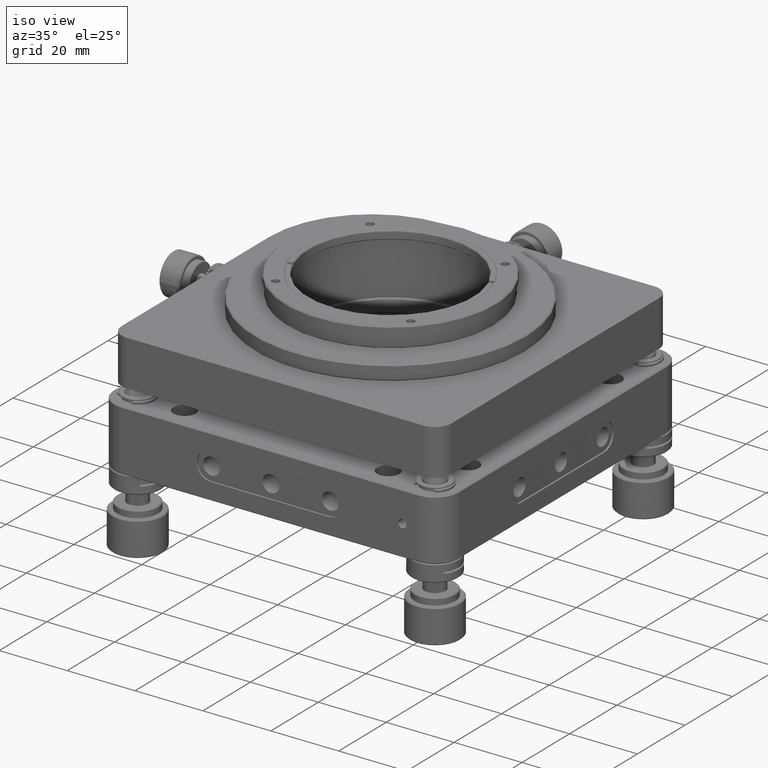
[diagram: clean part render]
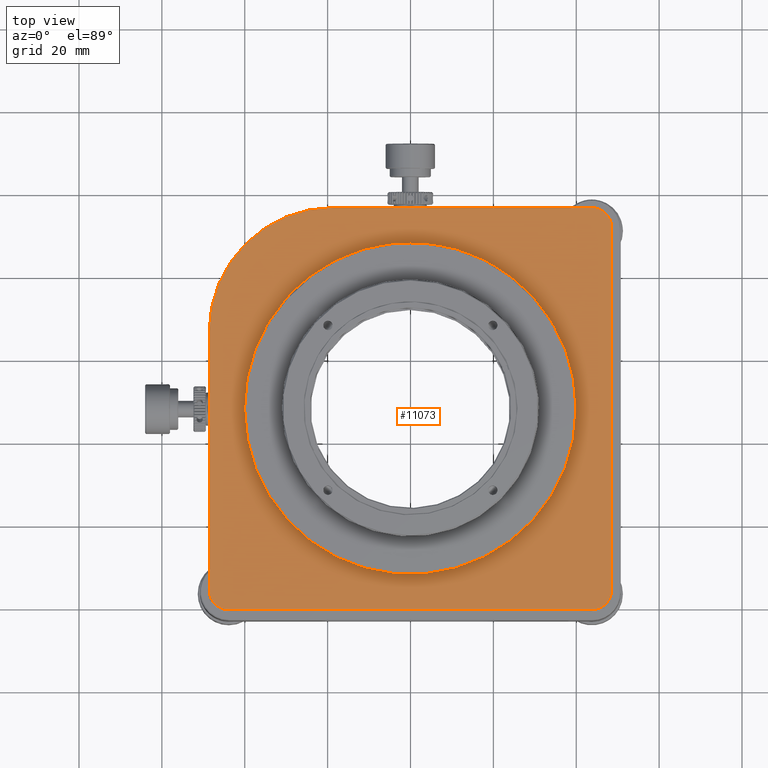
[diagram: tour spotlight — one face highlighted and labeled with its STEP entity id]
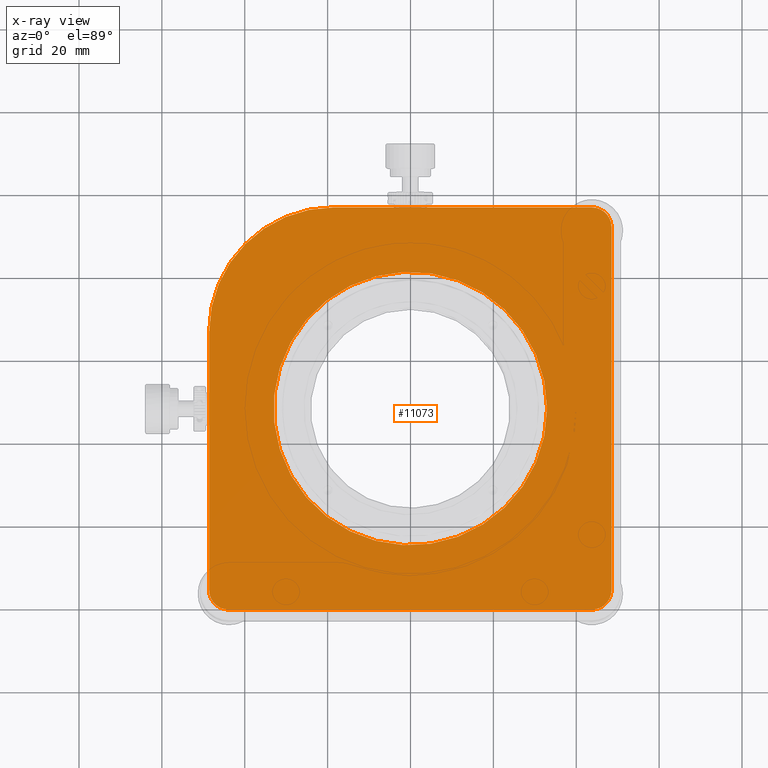
[diagram: x-ray of the same camera — body ghosted, this tour face saturated]
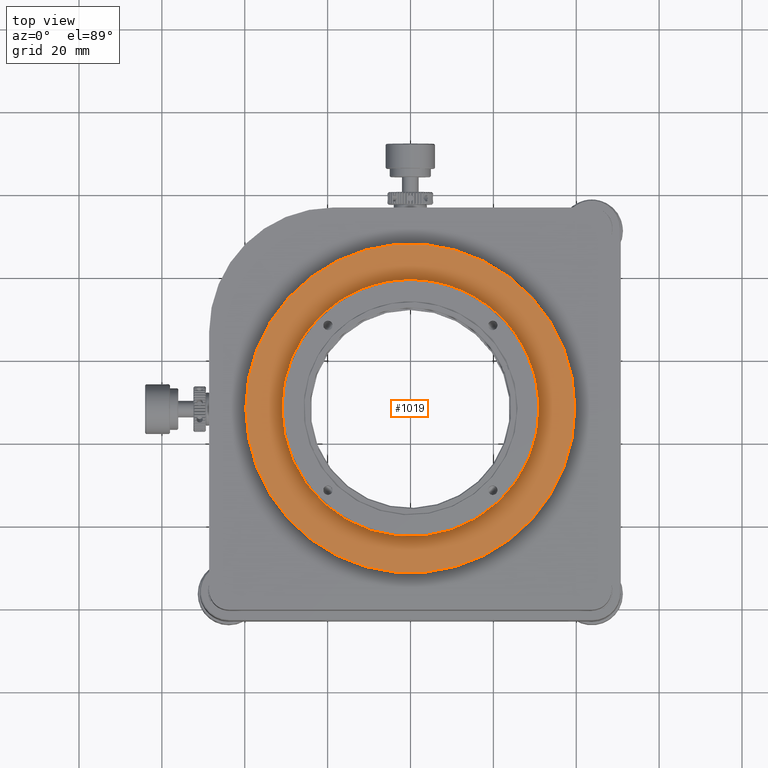
[diagram: tour spotlight — one face highlighted and labeled with its STEP entity id]
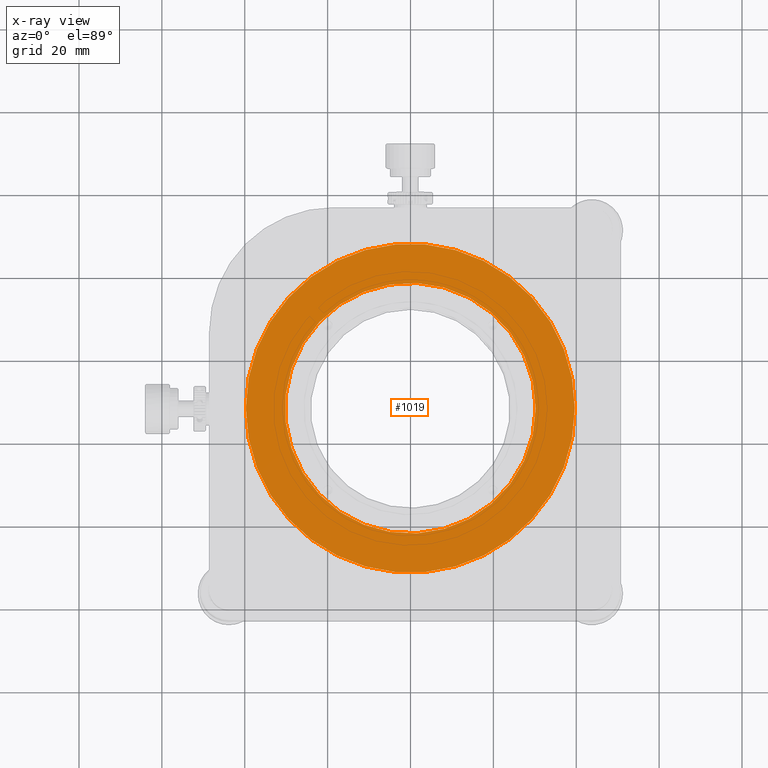
[diagram: x-ray of the same camera — body ghosted, this tour face saturated]
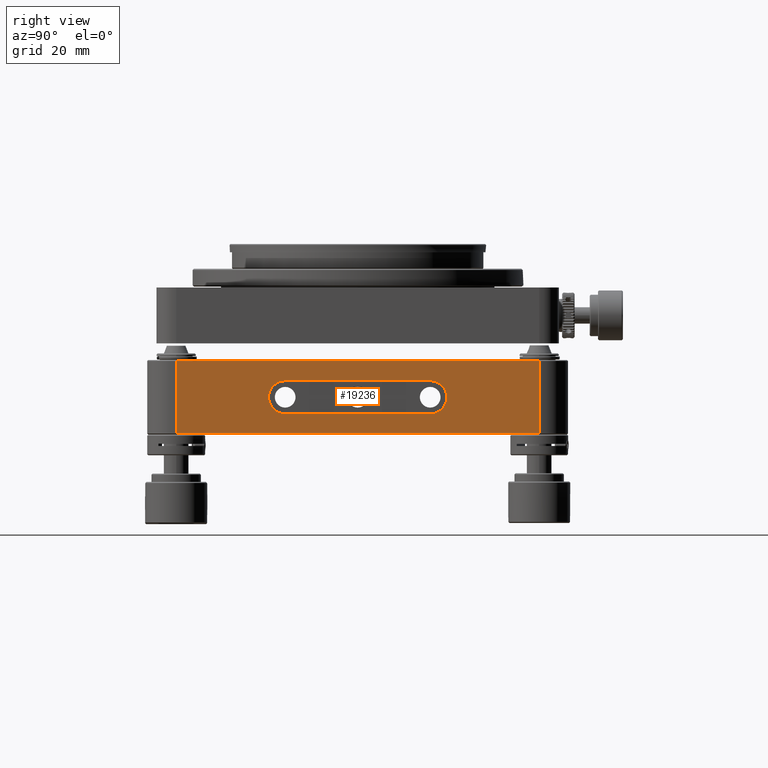
[diagram: tour spotlight — one face highlighted and labeled with its STEP entity id]
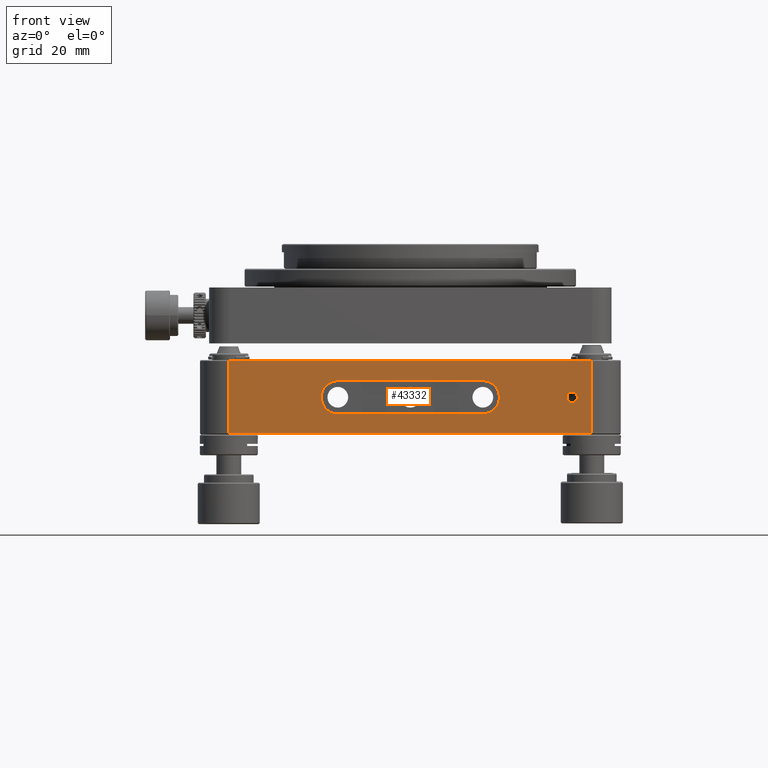
[diagram: tour spotlight — one face highlighted and labeled with its STEP entity id]
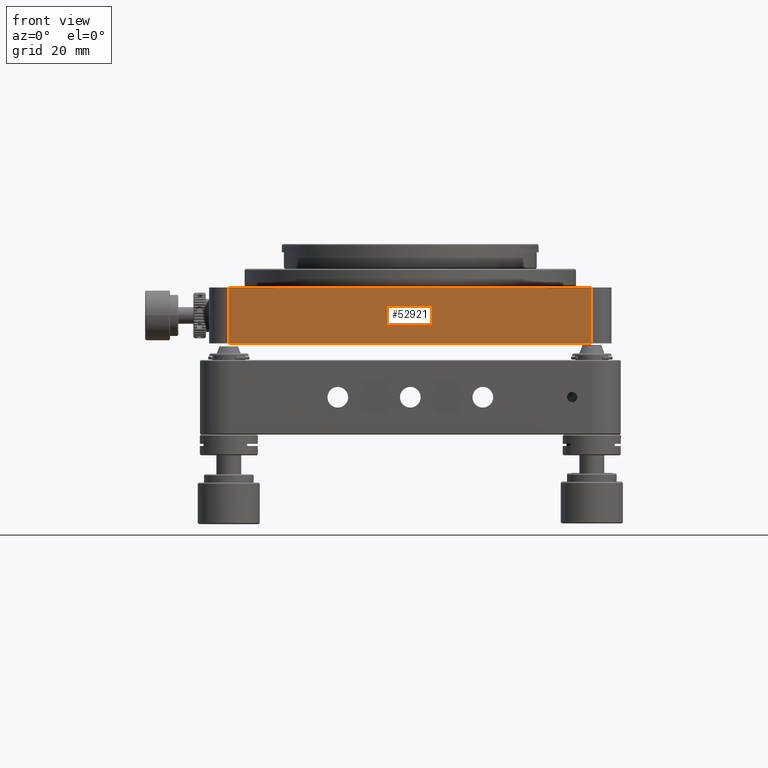
[diagram: tour spotlight — one face highlighted and labeled with its STEP entity id]
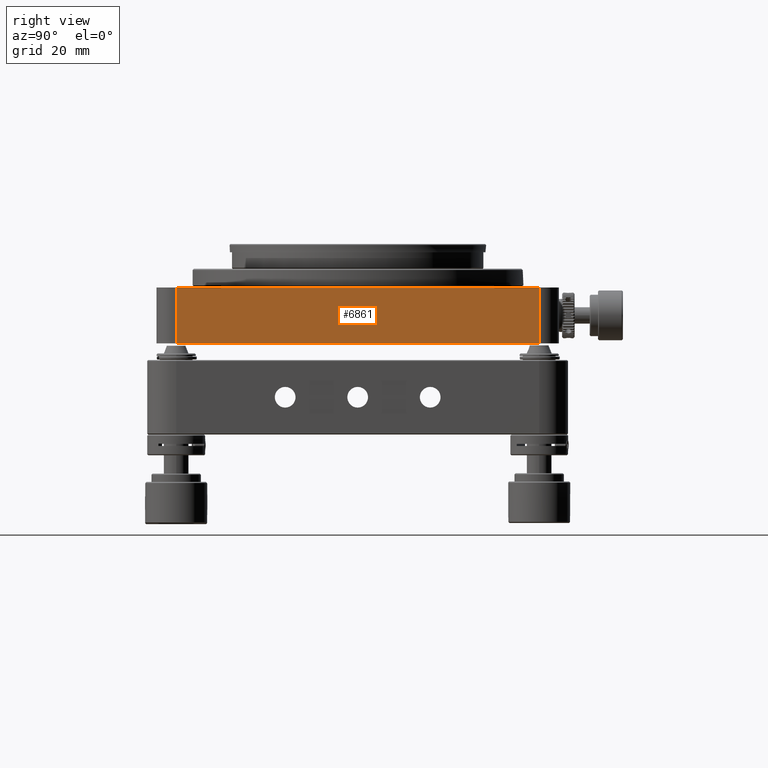
[diagram: tour spotlight — one face highlighted and labeled with its STEP entity id]
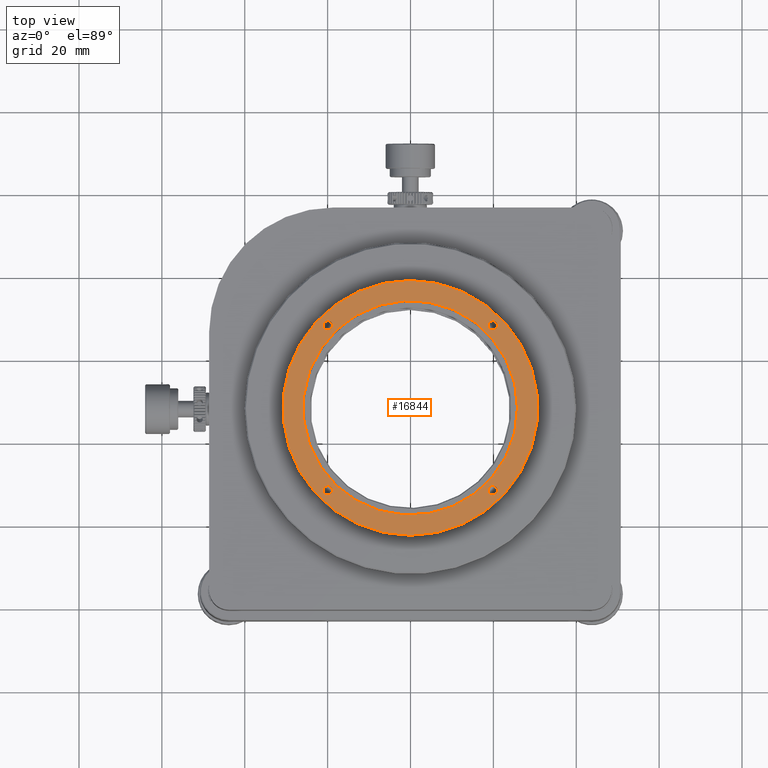
[diagram: tour spotlight — one face highlighted and labeled with its STEP entity id]
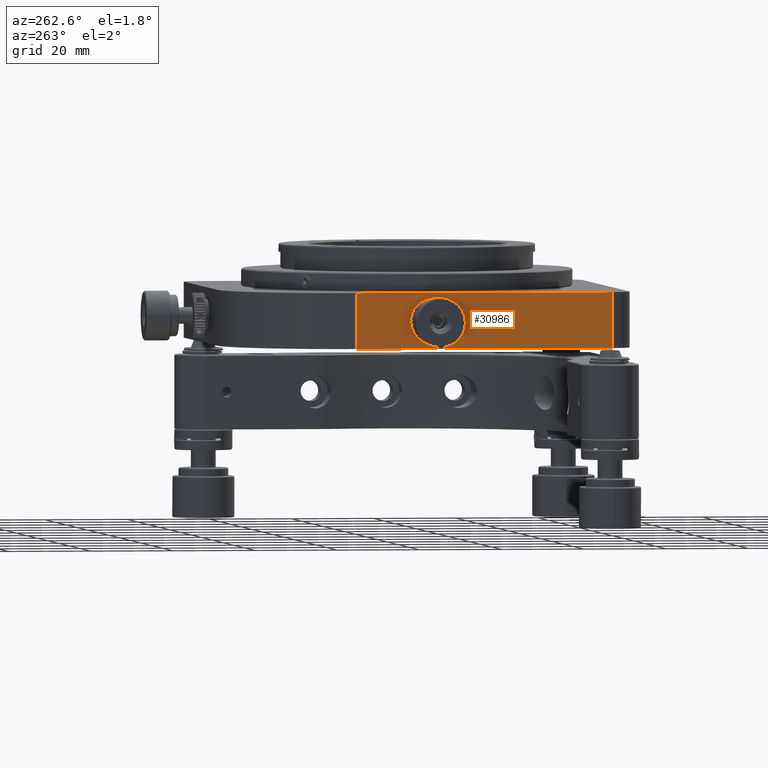
[diagram: tour spotlight — one face highlighted and labeled with its STEP entity id]
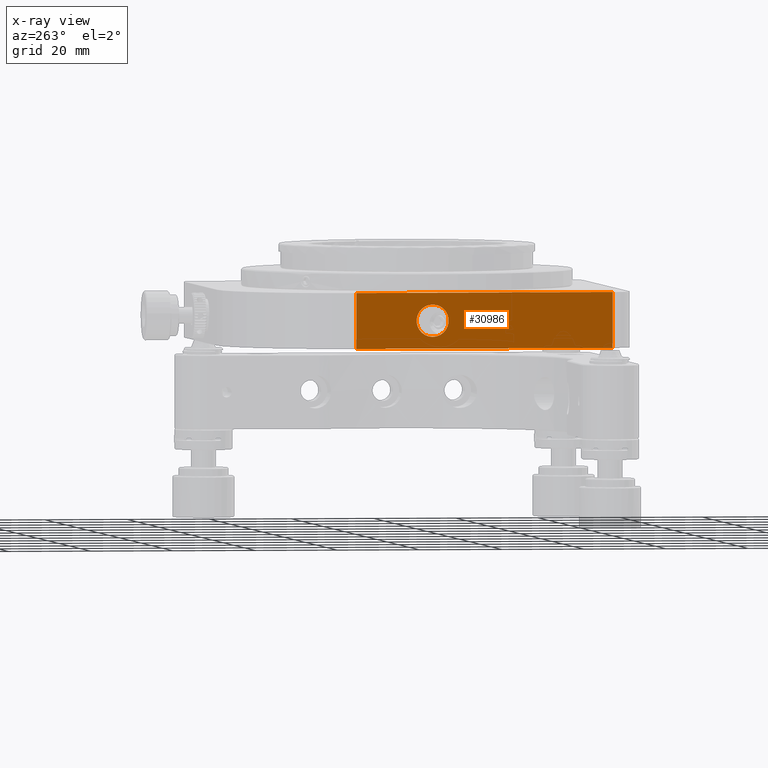
[diagram: x-ray of the same camera — body ghosted, this tour face saturated]
A machine part: a face-by-face anatomy tour. The part has 1506 B-rep faces; the first image is the clean iso view, then the 8 largest visible faces are spotlighted one at a time (largest first), each with its STEP entity span.

Face 1 — top view, entity #11073. An x-ray twin of the same camera follows (body ghosted, this face saturated) — the face is partly hidden behind the body. In plain terms, the highlighted planar face has unit normal (0, 0, 1).
Definition (entity closure, byte-faithful):
#526 = DIRECTION ( 'NONE',  ( -1.663366159635580232E-16, -3.603987660846512529E-17, -1.000000000000000000 ) ) ;
#1220 = CIRCLE ( 'NONE', #43931, 4.749999999999997335 ) ;
#2240 = CARTESIAN_POINT ( 'NONE',  ( -148.6000000000000796, -61.00000000000006395, 40.03842537941658719 ) ) ;
#2389 = ORIENTED_EDGE ( 'NONE', *, *, #37579, .T. ) ;
#3087 = ORIENTED_EDGE ( 'NONE', *, *, #50611, .F. ) ;
#3151 = AXIS2_PLACEMENT_3D ( 'NONE', #12533, #13351, #8893 ) ;
#3387 = DIRECTION ( 'NONE',  ( 1.000000000000000000, 1.706285386206695980E-16, -0.000000000000000000 ) ) ;
#3928 = LINE ( 'NONE', #15926, #9028 ) ;
#3984 = EDGE_LOOP ( 'NONE', ( #9444, #3087, #27390, #33935, #47982, #18307, #44100, #18369 ) ) ;
#4243 = CARTESIAN_POINT ( 'NONE',  ( -56.25000000000004974, -61.00000000000004263, 40.03842537941658009 ) ) ;
#5309 = CARTESIAN_POINT ( 'NONE',  ( -67.05000000000005400, -12.45000000000004192, 40.03842537941658009 ) ) ;
#5410 = VERTEX_POINT ( 'NONE', #4243 ) ;
#6633 = AXIS2_PLACEMENT_3D ( 'NONE', #46624, #30422, #25132 ) ;
#7388 = VERTEX_POINT ( 'NONE', #32985 ) ;
#7806 = EDGE_LOOP ( 'NONE', ( #2389 ) ) ;
#7972 = LINE ( 'NONE', #15788, #20080 ) ;
#8240 = DIRECTION ( 'NONE',  ( -1.000000000000000000, -2.770590414266281787E-17, 9.985173666275294357E-34 ) ) ;
#8893 = DIRECTION ( 'NONE',  ( 1.000000000000000000, 0.000000000000000000, -1.663366159635579985E-16 ) ) ;
#9028 = VECTOR ( 'NONE', #3387, 1000.000000000000000 ) ;
#9444 = ORIENTED_EDGE ( 'NONE', *, *, #41268, .T. ) ;
#10328 = VERTEX_POINT ( 'NONE', #21558 ) ;
#11073 = ADVANCED_FACE ( 'NONE', ( #21426, #13087 ), #17249, .T. ) ;
#11601 = VERTEX_POINT ( 'NONE', #30852 ) ;
#12533 = CARTESIAN_POINT ( 'NONE',  ( -100.0500000000000540, -12.45000000000004370, 40.03842537941658009 ) ) ;
#12942 = CARTESIAN_POINT ( 'NONE',  ( -100.0500000000000540, -12.45000000000004192, 40.03842537941658009 ) ) ;
#13087 = FACE_BOUND ( 'NONE', #7806, .T. ) ;
#13351 = DIRECTION ( 'NONE',  ( 1.663366159635579985E-16, 3.603987660846508832E-17, 1.000000000000000000 ) ) ;
#14660 = EDGE_CURVE ( 'NONE', #10328, #5410, #3928, .T. ) ;
#15788 = CARTESIAN_POINT ( 'NONE',  ( -148.6000000000000796, 36.09999999999997300, 40.03842537941657298 ) ) ;
#15926 = CARTESIAN_POINT ( 'NONE',  ( -148.6000000000000796, -61.00000000000006395, 40.03842537941658719 ) ) ;
#17249 = PLANE ( 'NONE',  #3151 ) ;
#17516 = DIRECTION ( 'NONE',  ( 1.000000000000000000, -1.460819769243627920E-15, 0.000000000000000000 ) ) ;
#18307 = ORIENTED_EDGE ( 'NONE', *, *, #34828, .F. ) ;
#18369 = ORIENTED_EDGE ( 'NONE', *, *, #20369, .F. ) ;
#18996 = VERTEX_POINT ( 'NONE', #41048 ) ;
#19530 = AXIS2_PLACEMENT_3D ( 'NONE', #28687, #28977, #50191 ) ;
#20080 = VECTOR ( 'NONE', #8240, 1000.000000000000000 ) ;
#20319 = CARTESIAN_POINT ( 'NONE',  ( -51.50000000000004263, -56.25000000000003553, 40.03842537941657298 ) ) ;
#20369 = EDGE_CURVE ( 'NONE', #40769, #5410, #38277, .T. ) ;
#20576 = CIRCLE ( 'NONE', #51775, 4.750000000000004441 ) ;
#21426 = FACE_OUTER_BOUND ( 'NONE', #3984, .T. ) ;
#21558 = CARTESIAN_POINT ( 'NONE',  ( -143.8500000000000512, -61.00000000000006395, 40.03842537941658719 ) ) ;
#21560 = DIRECTION ( 'NONE',  ( 1.000000000000000000, 0.000000000000000000, 0.000000000000000000 ) ) ;
#22187 = EDGE_CURVE ( 'NONE', #7388, #18996, #49087, .T. ) ;
#22463 = CARTESIAN_POINT ( 'NONE',  ( -51.50000000000004263, -61.00000000000004974, 40.03842537941657298 ) ) ;
#23212 = EDGE_CURVE ( 'NONE', #7388, #42726, #45830, .T. ) ;
#23413 = VECTOR ( 'NONE', #34487, 1000.000000000000000 ) ;
#25132 = DIRECTION ( 'NONE',  ( 1.000000000000000000, 0.000000000000000000, -2.312964634635742957E-16 ) ) ;
#27390 = ORIENTED_EDGE ( 'NONE', *, *, #29807, .T. ) ;
#28687 = CARTESIAN_POINT ( 'NONE',  ( -56.25000000000004974, -56.25000000000003553, 40.03842537941657298 ) ) ;
#28977 = DIRECTION ( 'NONE',  ( -1.663366159635580232E-16, -3.603987660846512529E-17, -1.000000000000000000 ) ) ;
#29807 = EDGE_CURVE ( 'NONE', #11601, #42726, #7972, .T. ) ;
#30284 = LINE ( 'NONE', #22463, #23413 ) ;
#30422 = DIRECTION ( 'NONE',  ( -1.663366159635580232E-16, -3.603987660846512529E-17, -1.000000000000000000 ) ) ;
#30612 = AXIS2_PLACEMENT_3D ( 'NONE', #12942, #42779, #21560 ) ;
#30852 = CARTESIAN_POINT ( 'NONE',  ( -56.25000000000006395, 36.09999999999997300, 40.03842537941657298 ) ) ;
#31220 = VERTEX_POINT ( 'NONE', #5309 ) ;
#32985 = CARTESIAN_POINT ( 'NONE',  ( -148.6000000000000796, 6.099999999999961453, 40.03842537941658719 ) ) ;
#33132 = CARTESIAN_POINT ( 'NONE',  ( -143.8500000000000512, -56.25000000000004974, 40.03842537941658719 ) ) ;
#33935 = ORIENTED_EDGE ( 'NONE', *, *, #23212, .F. ) ;
#34148 = VECTOR ( 'NONE', #36791, 1000.000000000000000 ) ;
#34487 = DIRECTION ( 'NONE',  ( -9.916722138166620946E-17, 1.000000000000000000, 1.649514001913534773E-32 ) ) ;
#34828 = EDGE_CURVE ( 'NONE', #10328, #18996, #20576, .T. ) ;
#36506 = DIRECTION ( 'NONE',  ( -1.663366159635580232E-16, -3.603987660846512529E-17, -1.000000000000000000 ) ) ;
#36791 = DIRECTION ( 'NONE',  ( 2.770590414266280555E-17, -1.000000000000000000, -4.608506337301253262E-33 ) ) ;
#37314 = VERTEX_POINT ( 'NONE', #45318 ) ;
#37579 = EDGE_CURVE ( 'NONE', #31220, #31220, #54667, .T. ) ;
#38277 = CIRCLE ( 'NONE', #19530, 4.750000000000004441 ) ;
#39049 = CARTESIAN_POINT ( 'NONE',  ( -118.6000000000000654, 36.09999999999996589, 40.03842537941657298 ) ) ;
#40769 = VERTEX_POINT ( 'NONE', #20319 ) ;
#41048 = CARTESIAN_POINT ( 'NONE',  ( -148.6000000000000796, -56.25000000000004974, 40.03842537941658719 ) ) ;
#41268 = EDGE_CURVE ( 'NONE', #40769, #37314, #30284, .T. ) ;
#42726 = VERTEX_POINT ( 'NONE', #39049 ) ;
#42779 = DIRECTION ( 'NONE',  ( -0.000000000000000000, -0.000000000000000000, -1.000000000000000000 ) ) ;
#43185 = CARTESIAN_POINT ( 'NONE',  ( -56.25000000000005684, 31.34999999999996945, 40.03842537941657298 ) ) ;
#43931 = AXIS2_PLACEMENT_3D ( 'NONE', #43185, #526, #17516 ) ;
#44100 = ORIENTED_EDGE ( 'NONE', *, *, #14660, .T. ) ;
#45318 = CARTESIAN_POINT ( 'NONE',  ( -51.50000000000005684, 31.34999999999996945, 40.03842537941657298 ) ) ;
#45830 = CIRCLE ( 'NONE', #6633, 30.00000000000000000 ) ;
#46624 = CARTESIAN_POINT ( 'NONE',  ( -118.6000000000000654, 6.099999999999964118, 40.03842537941658009 ) ) ;
#47982 = ORIENTED_EDGE ( 'NONE', *, *, #22187, .T. ) ;
#49073 = DIRECTION ( 'NONE',  ( 1.000000000000000000, 0.000000000000000000, 0.000000000000000000 ) ) ;
#49087 = LINE ( 'NONE', #2240, #34148 ) ;
#50191 = DIRECTION ( 'NONE',  ( 1.000000000000000000, 0.000000000000000000, 0.000000000000000000 ) ) ;
#50611 = EDGE_CURVE ( 'NONE', #11601, #37314, #1220, .T. ) ;
#51775 = AXIS2_PLACEMENT_3D ( 'NONE', #33132, #36506, #49073 ) ;
#54667 = CIRCLE ( 'NONE', #30612, 33.00000000000000000 ) ;

Face 2 — top view, entity #1019. An x-ray twin of the same camera follows (body ghosted, this face saturated) — the face is partly hidden behind the body. In plain terms, the highlighted planar face has unit normal (0, 0, 1).
Definition (entity closure, byte-faithful):
#1019 = ADVANCED_FACE ( 'NONE', ( #25292, #13586 ), #46792, .T. ) ;
#1559 = ORIENTED_EDGE ( 'NONE', *, *, #25396, .T. ) ;
#4505 = DIRECTION ( 'NONE',  ( 1.000000000000000000, 0.000000000000000000, 0.000000000000000000 ) ) ;
#8585 = DIRECTION ( 'NONE',  ( 0.000000000000000000, 0.000000000000000000, 1.000000000000000000 ) ) ;
#13422 = DIRECTION ( 'NONE',  ( -0.000000000000000000, 0.000000000000000000, -1.000000000000000000 ) ) ;
#13586 = FACE_BOUND ( 'NONE', #13938, .T. ) ;
#13938 = EDGE_LOOP ( 'NONE', ( #1559 ) ) ;
#16683 = CARTESIAN_POINT ( 'NONE',  ( -100.0500000000000540, -12.45000000000004192, 44.53842537941658009 ) ) ;
#16814 = CARTESIAN_POINT ( 'NONE',  ( -100.0500000000000540, -12.45000000000004192, 44.53842537941658719 ) ) ;
#18175 = EDGE_LOOP ( 'NONE', ( #45975 ) ) ;
#19949 = AXIS2_PLACEMENT_3D ( 'NONE', #34057, #13422, #4505 ) ;
#23444 = VERTEX_POINT ( 'NONE', #44415 ) ;
#23649 = CARTESIAN_POINT ( 'NONE',  ( -139.7500000000000284, -12.45000000000004192, 44.53842537941658719 ) ) ;
#25292 = FACE_OUTER_BOUND ( 'NONE', #18175, .T. ) ;
#25396 = EDGE_CURVE ( 'NONE', #23444, #23444, #54735, .T. ) ;
#29617 = DIRECTION ( 'NONE',  ( -0.000000000000000000, 0.000000000000000000, -1.000000000000000000 ) ) ;
#30592 = CIRCLE ( 'NONE', #37731, 39.69999999999998863 ) ;
#34057 = CARTESIAN_POINT ( 'NONE',  ( -100.0500000000000540, -12.45000000000004547, 44.53842537941657298 ) ) ;
#37731 = AXIS2_PLACEMENT_3D ( 'NONE', #16814, #29617, #54757 ) ;
#42877 = DIRECTION ( 'NONE',  ( 1.000000000000000000, 0.000000000000000000, -0.000000000000000000 ) ) ;
#43779 = EDGE_CURVE ( 'NONE', #53240, #53240, #30592, .T. ) ;
#44415 = CARTESIAN_POINT ( 'NONE',  ( -69.80000000000005400, -12.45000000000004547, 44.53842537941657298 ) ) ;
#45195 = AXIS2_PLACEMENT_3D ( 'NONE', #16683, #8585, #42877 ) ;
#45975 = ORIENTED_EDGE ( 'NONE', *, *, #43779, .F. ) ;
#46792 = PLANE ( 'NONE',  #45195 ) ;
#53240 = VERTEX_POINT ( 'NONE', #23649 ) ;
#54735 = CIRCLE ( 'NONE', #19949, 30.25000000000000000 ) ;
#54757 = DIRECTION ( 'NONE',  ( -1.000000000000000000, 0.000000000000000000, 0.000000000000000000 ) ) ;

Face 3 — right view, entity #19236. In plain terms, the highlighted planar face has unit normal (-1, -0, 0).
Definition (entity closure, byte-faithful):
#824 = AXIS2_PLACEMENT_3D ( 'NONE', #8688, #25675, #18956 ) ;
#2769 = EDGE_CURVE ( 'NONE', #53970, #48869, #46494, .T. ) ;
#3809 = CARTESIAN_POINT ( 'NONE',  ( -49.25000000000005684, -56.25000000000003553, 22.53842537941656232 ) ) ;
#4234 = EDGE_LOOP ( 'NONE', ( #19906, #49023, #45346, #29332 ) ) ;
#4507 = VERTEX_POINT ( 'NONE', #36453 ) ;
#5371 = DIRECTION ( 'NONE',  ( -6.829619984160658046E-17, 1.000000000000000000, -0.000000000000000000 ) ) ;
#6697 = DIRECTION ( 'NONE',  ( 1.000000000000000000, 4.440892098500625176E-16, 0.000000000000000000 ) ) ;
#6839 = EDGE_CURVE ( 'NONE', #48869, #4507, #31398, .T. ) ;
#7901 = CARTESIAN_POINT ( 'NONE',  ( -49.25000000000733280, 31.34999999999996945, 4.788425379395246928 ) ) ;
#8688 = CARTESIAN_POINT ( 'NONE',  ( -49.25000000000006395, 38.34999999999996589, 22.53842537941656232 ) ) ;
#11010 = VECTOR ( 'NONE', #27506, 1000.000000000000000 ) ;
#11629 = LINE ( 'NONE', #3809, #19991 ) ;
#12447 = VERTEX_POINT ( 'NONE', #18593 ) ;
#13972 = PLANE ( 'NONE',  #824 ) ;
#14005 = DIRECTION ( 'NONE',  ( 0.000000000000000000, 1.000000000000000000, 0.000000000000000000 ) ) ;
#15812 = DIRECTION ( 'NONE',  ( 0.000000000000000000, 0.000000000000000000, 1.000000000000000000 ) ) ;
#16178 = EDGE_LOOP ( 'NONE', ( #20432, #43988, #48590, #41216 ) ) ;
#16377 = CIRCLE ( 'NONE', #28830, 4.000000000000000000 ) ;
#17852 = EDGE_CURVE ( 'NONE', #24731, #12447, #22207, .T. ) ;
#18593 = CARTESIAN_POINT ( 'NONE',  ( -49.24999999998335198, 31.34999999999997655, 22.28842537938333379 ) ) ;
#18746 = CARTESIAN_POINT ( 'NONE',  ( -49.25000000000006395, 38.34999999999996589, 9.538425379416571204 ) ) ;
#18956 = DIRECTION ( 'NONE',  ( 6.829619984160658046E-17, -1.000000000000000000, 0.000000000000000000 ) ) ;
#19236 = ADVANCED_FACE ( 'NONE', ( #29864, #46896 ), #13972, .F. ) ;
#19906 = ORIENTED_EDGE ( 'NONE', *, *, #6839, .F. ) ;
#19927 = CARTESIAN_POINT ( 'NONE',  ( -49.25000000000006395, 38.34999999999996589, 4.788425379416552552 ) ) ;
#19991 = VECTOR ( 'NONE', #15812, 1000.000000000000000 ) ;
#20432 = ORIENTED_EDGE ( 'NONE', *, *, #17852, .F. ) ;
#20812 = VECTOR ( 'NONE', #26365, 1000.000000000000000 ) ;
#22000 = CARTESIAN_POINT ( 'NONE',  ( -49.25000000000005684, -29.95000000000001350, 13.53842537941657120 ) ) ;
#22207 = LINE ( 'NONE', #39246, #49664 ) ;
#24731 = VERTEX_POINT ( 'NONE', #51790 ) ;
#25533 = CARTESIAN_POINT ( 'NONE',  ( -49.25000000000007105, 31.34999999999996945, 22.53842537941656232 ) ) ;
#25675 = DIRECTION ( 'NONE',  ( -1.000000000000000000, -6.829619984160658046E-17, 0.000000000000000000 ) ) ;
#26150 = EDGE_CURVE ( 'NONE', #33865, #24731, #11629, .T. ) ;
#26365 = DIRECTION ( 'NONE',  ( 0.000000000000000000, 0.000000000000000000, -1.000000000000000000 ) ) ;
#27506 = DIRECTION ( 'NONE',  ( 6.829619984160658046E-17, -1.000000000000000000, 0.000000000000000000 ) ) ;
#27569 = EDGE_CURVE ( 'NONE', #44989, #33865, #32758, .T. ) ;
#27879 = CARTESIAN_POINT ( 'NONE',  ( -49.25000000000006395, 5.049999999999988276, 13.53842537941655877 ) ) ;
#28051 = CARTESIAN_POINT ( 'NONE',  ( -49.25000000000006395, 5.049999999999987388, 17.53842537941655877 ) ) ;
#28641 = EDGE_CURVE ( 'NONE', #4507, #54240, #16377, .T. ) ;
#28830 = AXIS2_PLACEMENT_3D ( 'NONE', #22000, #52428, #53219 ) ;
#28946 = CARTESIAN_POINT ( 'NONE',  ( -49.25000000000731859, -56.25000000000003553, 4.788425379395246928 ) ) ;
#29332 = ORIENTED_EDGE ( 'NONE', *, *, #28641, .F. ) ;
#29864 = FACE_BOUND ( 'NONE', #4234, .T. ) ;
#30438 = AXIS2_PLACEMENT_3D ( 'NONE', #27879, #6697, #14005 ) ;
#31398 = LINE ( 'NONE', #38987, #11010 ) ;
#31551 = LINE ( 'NONE', #18746, #39821 ) ;
#32483 = CARTESIAN_POINT ( 'NONE',  ( -49.25000000000005684, -29.95000000000001705, 9.538425379416571204 ) ) ;
#32758 = LINE ( 'NONE', #19927, #53050 ) ;
#33865 = VERTEX_POINT ( 'NONE', #28946 ) ;
#36453 = CARTESIAN_POINT ( 'NONE',  ( -49.25000000000005684, -29.95000000000001350, 17.53842537941656232 ) ) ;
#38987 = CARTESIAN_POINT ( 'NONE',  ( -49.25000000000006395, 38.34999999999996589, 17.53842537941655877 ) ) ;
#39246 = CARTESIAN_POINT ( 'NONE',  ( -49.25000000000004974, -12.45000000000003482, 22.28842537941656943 ) ) ;
#39821 = VECTOR ( 'NONE', #5371, 1000.000000000000000 ) ;
#41216 = ORIENTED_EDGE ( 'NONE', *, *, #50916, .F. ) ;
#41423 = DIRECTION ( 'NONE',  ( 6.829619984160658046E-17, -1.000000000000000000, 0.000000000000000000 ) ) ;
#43406 = LINE ( 'NONE', #25533, #20812 ) ;
#43988 = ORIENTED_EDGE ( 'NONE', *, *, #26150, .F. ) ;
#44989 = VERTEX_POINT ( 'NONE', #7901 ) ;
#45346 = ORIENTED_EDGE ( 'NONE', *, *, #48533, .F. ) ;
#46494 = CIRCLE ( 'NONE', #30438, 4.000000000000000000 ) ;
#46896 = FACE_OUTER_BOUND ( 'NONE', #16178, .T. ) ;
#47910 = DIRECTION ( 'NONE',  ( -3.414809992080376478E-17, 1.000000000000000000, -3.414809992080329023E-17 ) ) ;
#48533 = EDGE_CURVE ( 'NONE', #54240, #53970, #31551, .T. ) ;
#48590 = ORIENTED_EDGE ( 'NONE', *, *, #27569, .F. ) ;
#48869 = VERTEX_POINT ( 'NONE', #28051 ) ;
#49023 = ORIENTED_EDGE ( 'NONE', *, *, #2769, .F. ) ;
#49664 = VECTOR ( 'NONE', #47910, 1000.000000000000000 ) ;
#50916 = EDGE_CURVE ( 'NONE', #12447, #44989, #43406, .T. ) ;
#51790 = CARTESIAN_POINT ( 'NONE',  ( -49.24999999999028688, -56.25000000000003553, 22.28842537940548851 ) ) ;
#52428 = DIRECTION ( 'NONE',  ( 1.000000000000000000, 4.440892098500625176E-16, 0.000000000000000000 ) ) ;
#53050 = VECTOR ( 'NONE', #41423, 1000.000000000000000 ) ;
#53219 = DIRECTION ( 'NONE',  ( 0.000000000000000000, 1.000000000000000000, 0.000000000000000000 ) ) ;
#53970 = VERTEX_POINT ( 'NONE', #54594 ) ;
#54240 = VERTEX_POINT ( 'NONE', #32483 ) ;
#54594 = CARTESIAN_POINT ( 'NONE',  ( -49.25000000000006395, 5.049999999999988276, 9.538425379416564098 ) ) ;

Face 4 — front view, entity #43332. In plain terms, the highlighted planar face has unit normal (0, 1, 0).
Definition (entity closure, byte-faithful):
#158 = VERTEX_POINT ( 'NONE', #17122 ) ;
#593 = CARTESIAN_POINT ( 'NONE',  ( -56.25000000000005684, -63.24999999999558753, 4.788425379395246928 ) ) ;
#2926 = AXIS2_PLACEMENT_3D ( 'NONE', #53159, #14950, #49245 ) ;
#2944 = FACE_BOUND ( 'NONE', #40370, .T. ) ;
#3644 = ORIENTED_EDGE ( 'NONE', *, *, #44793, .F. ) ;
#3697 = VECTOR ( 'NONE', #9076, 1000.000000000000000 ) ;
#3896 = ORIENTED_EDGE ( 'NONE', *, *, #48142, .T. ) ;
#4359 = CARTESIAN_POINT ( 'NONE',  ( -150.8500000000000796, -63.25000000000002842, 17.53842537941656943 ) ) ;
#4992 = EDGE_CURVE ( 'NONE', #19322, #158, #29109, .T. ) ;
#5598 = DIRECTION ( 'NONE',  ( -0.000000000000000000, -1.000000000000000000, -0.000000000000000000 ) ) ;
#5867 = CARTESIAN_POINT ( 'NONE',  ( -143.8500000000000227, -63.25000000000002842, 4.788425379416552552 ) ) ;
#5874 = LINE ( 'NONE', #44369, #41326 ) ;
#6300 = FACE_BOUND ( 'NONE', #51407, .T. ) ;
#8510 = DIRECTION ( 'NONE',  ( 0.000000000000000000, 0.000000000000000000, -1.000000000000000000 ) ) ;
#9076 = DIRECTION ( 'NONE',  ( -1.000000000000000000, -0.000000000000000000, 0.000000000000000000 ) ) ;
#9147 = CARTESIAN_POINT ( 'NONE',  ( -56.25000000000005684, -63.25000000000002842, 22.53842537941656232 ) ) ;
#10707 = ORIENTED_EDGE ( 'NONE', *, *, #53533, .F. ) ;
#11025 = CIRCLE ( 'NONE', #49325, 3.999999999999998224 ) ;
#11206 = DIRECTION ( 'NONE',  ( -1.000000000000000000, -0.000000000000000000, 0.000000000000000000 ) ) ;
#11693 = ORIENTED_EDGE ( 'NONE', *, *, #50614, .F. ) ;
#13101 = EDGE_LOOP ( 'NONE', ( #3644, #37678, #28169, #11693 ) ) ;
#13801 = CARTESIAN_POINT ( 'NONE',  ( -82.55000000000003979, -63.25000000000002842, 17.53842537941656943 ) ) ;
#14780 = VERTEX_POINT ( 'NONE', #593 ) ;
#14950 = DIRECTION ( 'NONE',  ( 0.000000000000000000, 1.000000000000000000, 0.000000000000000000 ) ) ;
#14993 = EDGE_CURVE ( 'NONE', #43540, #44466, #37823, .T. ) ;
#15092 = LINE ( 'NONE', #24261, #18839 ) ;
#16455 = CARTESIAN_POINT ( 'NONE',  ( -56.25000000000004263, -63.25000000001956835, 22.28842537938333379 ) ) ;
#17122 = CARTESIAN_POINT ( 'NONE',  ( -143.8500000000000227, -63.25000000001204370, 22.28842537941969937 ) ) ;
#17494 = AXIS2_PLACEMENT_3D ( 'NONE', #38919, #51479, #8510 ) ;
#18062 = DIRECTION ( 'NONE',  ( 0.000000000000000000, 0.000000000000000000, -1.000000000000000000 ) ) ;
#18231 = VECTOR ( 'NONE', #47564, 1000.000000000000000 ) ;
#18839 = VECTOR ( 'NONE', #11206, 1000.000000000000000 ) ;
#18963 = DIRECTION ( 'NONE',  ( 0.000000000000000000, 0.000000000000000000, -1.000000000000000000 ) ) ;
#19322 = VERTEX_POINT ( 'NONE', #5867 ) ;
#20642 = CARTESIAN_POINT ( 'NONE',  ( -117.5500000000000540, -63.25000000000002842, 17.53842537941656232 ) ) ;
#21686 = LINE ( 'NONE', #9147, #39500 ) ;
#22127 = EDGE_CURVE ( 'NONE', #44466, #30033, #11025, .T. ) ;
#22159 = CARTESIAN_POINT ( 'NONE',  ( -100.0500000000000540, -63.25000000000004263, 22.28842537941656587 ) ) ;
#22873 = DIRECTION ( 'NONE',  ( 1.000000000000000000, 0.000000000000000000, -0.000000000000000000 ) ) ;
#23795 = CARTESIAN_POINT ( 'NONE',  ( -117.5500000000000540, -63.25000000000002842, 9.538425379416560546 ) ) ;
#24261 = CARTESIAN_POINT ( 'NONE',  ( -150.8500000000000796, -63.25000000000002842, 4.788425379416552552 ) ) ;
#26290 = ORIENTED_EDGE ( 'NONE', *, *, #22127, .F. ) ;
#28169 = ORIENTED_EDGE ( 'NONE', *, *, #34422, .F. ) ;
#29109 = LINE ( 'NONE', #32740, #39206 ) ;
#29234 = VERTEX_POINT ( 'NONE', #50452 ) ;
#30033 = VERTEX_POINT ( 'NONE', #23795 ) ;
#30816 = LINE ( 'NONE', #22159, #18231 ) ;
#32260 = VERTEX_POINT ( 'NONE', #16455 ) ;
#32740 = CARTESIAN_POINT ( 'NONE',  ( -143.8500000000000227, -63.25000000000002842, 22.53842537941656232 ) ) ;
#34132 = CIRCLE ( 'NONE', #41273, 4.000000000000000000 ) ;
#34422 = EDGE_CURVE ( 'NONE', #14780, #19322, #15092, .T. ) ;
#35806 = CARTESIAN_POINT ( 'NONE',  ( -82.55000000000005400, -63.25000000000002842, 9.538425379416565875 ) ) ;
#37678 = ORIENTED_EDGE ( 'NONE', *, *, #4992, .F. ) ;
#37823 = LINE ( 'NONE', #4359, #3697 ) ;
#38566 = ORIENTED_EDGE ( 'NONE', *, *, #51625, .F. ) ;
#38919 = CARTESIAN_POINT ( 'NONE',  ( -61.00000000000006395, -63.25000000000002842, 13.53842537941656410 ) ) ;
#39206 = VECTOR ( 'NONE', #45578, 1000.000000000000000 ) ;
#39500 = VECTOR ( 'NONE', #18062, 1000.000000000000000 ) ;
#40333 = PLANE ( 'NONE',  #2926 ) ;
#40370 = EDGE_LOOP ( 'NONE', ( #3896 ) ) ;
#40876 = DIRECTION ( 'NONE',  ( 0.000000000000000000, 0.000000000000000000, -1.000000000000000000 ) ) ;
#41273 = AXIS2_PLACEMENT_3D ( 'NONE', #53139, #53965, #40876 ) ;
#41326 = VECTOR ( 'NONE', #22873, 1000.000000000000000 ) ;
#43332 = ADVANCED_FACE ( 'NONE', ( #45071, #2944, #6300 ), #40333, .F. ) ;
#43540 = VERTEX_POINT ( 'NONE', #13801 ) ;
#44104 = CARTESIAN_POINT ( 'NONE',  ( -117.5500000000000540, -63.25000000000002842, 13.53842537941655877 ) ) ;
#44369 = CARTESIAN_POINT ( 'NONE',  ( -150.8500000000000796, -63.25000000000002842, 9.538425379416560546 ) ) ;
#44466 = VERTEX_POINT ( 'NONE', #20642 ) ;
#44793 = EDGE_CURVE ( 'NONE', #158, #32260, #30816, .T. ) ;
#45071 = FACE_OUTER_BOUND ( 'NONE', #13101, .T. ) ;
#45578 = DIRECTION ( 'NONE',  ( 0.000000000000000000, -0.000000000000000000, 1.000000000000000000 ) ) ;
#47564 = DIRECTION ( 'NONE',  ( 1.000000000000000000, 0.000000000000000000, 0.000000000000000000 ) ) ;
#48142 = EDGE_CURVE ( 'NONE', #29234, #29234, #54944, .T. ) ;
#49245 = DIRECTION ( 'NONE',  ( 0.000000000000000000, -0.000000000000000000, 1.000000000000000000 ) ) ;
#49325 = AXIS2_PLACEMENT_3D ( 'NONE', #44104, #5598, #18963 ) ;
#49423 = ORIENTED_EDGE ( 'NONE', *, *, #14993, .F. ) ;
#50452 = CARTESIAN_POINT ( 'NONE',  ( -61.00000000000006395, -63.25000000000002842, 12.28842537941657298 ) ) ;
#50513 = VERTEX_POINT ( 'NONE', #35806 ) ;
#50614 = EDGE_CURVE ( 'NONE', #32260, #14780, #21686, .T. ) ;
#51407 = EDGE_LOOP ( 'NONE', ( #10707, #38566, #26290, #49423 ) ) ;
#51479 = DIRECTION ( 'NONE',  ( 0.000000000000000000, 1.000000000000000000, 0.000000000000000000 ) ) ;
#51625 = EDGE_CURVE ( 'NONE', #30033, #50513, #5874, .T. ) ;
#53139 = CARTESIAN_POINT ( 'NONE',  ( -82.55000000000005400, -63.25000000000002842, 13.53842537941657120 ) ) ;
#53159 = CARTESIAN_POINT ( 'NONE',  ( -150.8500000000000796, -63.25000000000002842, 22.53842537941656232 ) ) ;
#53533 = EDGE_CURVE ( 'NONE', #50513, #43540, #34132, .T. ) ;
#53965 = DIRECTION ( 'NONE',  ( -0.000000000000000000, -1.000000000000000000, -0.000000000000000000 ) ) ;
#54944 = CIRCLE ( 'NONE', #17494, 1.249999999999990674 ) ;

Face 5 — front view, entity #52921. In plain terms, the highlighted planar face has unit normal (-0, 1, -0).
Definition (entity closure, byte-faithful):
#327 = ORIENTED_EDGE ( 'NONE', *, *, #14660, .F. ) ;
#1178 = CARTESIAN_POINT ( 'NONE',  ( -143.8500000000000512, -61.00000000000006395, 26.53842537941658009 ) ) ;
#1652 = LINE ( 'NONE', #30626, #31646 ) ;
#2704 = EDGE_CURVE ( 'NONE', #42815, #10328, #6166, .T. ) ;
#3387 = DIRECTION ( 'NONE',  ( 1.000000000000000000, 1.706285386206695980E-16, -0.000000000000000000 ) ) ;
#3928 = LINE ( 'NONE', #15926, #9028 ) ;
#4243 = CARTESIAN_POINT ( 'NONE',  ( -56.25000000000004974, -61.00000000000004263, 40.03842537941658009 ) ) ;
#4891 = CARTESIAN_POINT ( 'NONE',  ( -56.25000000000004974, -61.00000000000004263, 26.53842537941656587 ) ) ;
#5410 = VERTEX_POINT ( 'NONE', #4243 ) ;
#6166 = LINE ( 'NONE', #1178, #33347 ) ;
#8334 = PLANE ( 'NONE',  #53677 ) ;
#8625 = DIRECTION ( 'NONE',  ( -1.000000000000000000, -1.706285386206695980E-16, 0.000000000000000000 ) ) ;
#9028 = VECTOR ( 'NONE', #3387, 1000.000000000000000 ) ;
#10328 = VERTEX_POINT ( 'NONE', #21558 ) ;
#11123 = EDGE_CURVE ( 'NONE', #42815, #50129, #1652, .T. ) ;
#12792 = ORIENTED_EDGE ( 'NONE', *, *, #29929, .F. ) ;
#13258 = LINE ( 'NONE', #4891, #44174 ) ;
#14660 = EDGE_CURVE ( 'NONE', #10328, #5410, #3928, .T. ) ;
#15926 = CARTESIAN_POINT ( 'NONE',  ( -148.6000000000000796, -61.00000000000006395, 40.03842537941658719 ) ) ;
#20295 = CARTESIAN_POINT ( 'NONE',  ( -143.8500000000000512, -61.00000000000006395, 26.53842537941658009 ) ) ;
#21558 = CARTESIAN_POINT ( 'NONE',  ( -143.8500000000000512, -61.00000000000006395, 40.03842537941658719 ) ) ;
#25336 = CARTESIAN_POINT ( 'NONE',  ( -148.6000000000000796, -61.00000000000006395, 26.53842537941658009 ) ) ;
#25792 = DIRECTION ( 'NONE',  ( -1.663366159635580232E-16, -3.603987660846512529E-17, -1.000000000000000000 ) ) ;
#29929 = EDGE_CURVE ( 'NONE', #5410, #50129, #13258, .T. ) ;
#30626 = CARTESIAN_POINT ( 'NONE',  ( -100.0500000000000540, -61.00000000000006395, 26.53842537941657653 ) ) ;
#31646 = VECTOR ( 'NONE', #35911, 1000.000000000000000 ) ;
#33347 = VECTOR ( 'NONE', #44924, 1000.000000000000000 ) ;
#35911 = DIRECTION ( 'NONE',  ( 1.000000000000000000, 0.000000000000000000, -1.663366159635579985E-16 ) ) ;
#38137 = ORIENTED_EDGE ( 'NONE', *, *, #11123, .T. ) ;
#38181 = CARTESIAN_POINT ( 'NONE',  ( -56.25000000000004974, -61.00000000000005684, 26.53842537941656587 ) ) ;
#42385 = DIRECTION ( 'NONE',  ( -1.706285386206695980E-16, 1.000000000000000000, -3.603987660846509448E-17 ) ) ;
#42815 = VERTEX_POINT ( 'NONE', #20295 ) ;
#44174 = VECTOR ( 'NONE', #25792, 1000.000000000000000 ) ;
#44924 = DIRECTION ( 'NONE',  ( -6.149431477771653142E-33, 3.603987660846509448E-17, 1.000000000000000000 ) ) ;
#46551 = FACE_OUTER_BOUND ( 'NONE', #47058, .T. ) ;
#47058 = EDGE_LOOP ( 'NONE', ( #48074, #38137, #12792, #327 ) ) ;
#48074 = ORIENTED_EDGE ( 'NONE', *, *, #2704, .F. ) ;
#50129 = VERTEX_POINT ( 'NONE', #38181 ) ;
#52921 = ADVANCED_FACE ( 'NONE', ( #46551 ), #8334, .F. ) ;
#53677 = AXIS2_PLACEMENT_3D ( 'NONE', #25336, #42385, #8625 ) ;

Face 6 — right view, entity #6861. In plain terms, the highlighted planar face has unit normal (-1, -0, 0).
Definition (entity closure, byte-faithful):
#185 = DIRECTION ( 'NONE',  ( 1.663366159635579739E-16, 0.000000000000000000, 1.000000000000000000 ) ) ;
#1240 = AXIS2_PLACEMENT_3D ( 'NONE', #7118, #53163, #20229 ) ;
#5471 = ORIENTED_EDGE ( 'NONE', *, *, #41268, .F. ) ;
#5758 = EDGE_LOOP ( 'NONE', ( #28882, #19826, #30362, #5471 ) ) ;
#6861 = ADVANCED_FACE ( 'NONE', ( #15483 ), #49814, .F. ) ;
#7118 = CARTESIAN_POINT ( 'NONE',  ( -51.50000000000004263, -61.00000000000004974, 26.53842537941656587 ) ) ;
#8821 = CARTESIAN_POINT ( 'NONE',  ( -51.50000000000004263, -56.25000000000003553, 26.53842537941656587 ) ) ;
#15483 = FACE_OUTER_BOUND ( 'NONE', #5758, .T. ) ;
#19826 = ORIENTED_EDGE ( 'NONE', *, *, #36312, .T. ) ;
#20229 = DIRECTION ( 'NONE',  ( 1.663366159635579739E-16, 0.000000000000000000, 1.000000000000000000 ) ) ;
#20319 = CARTESIAN_POINT ( 'NONE',  ( -51.50000000000004263, -56.25000000000003553, 40.03842537941657298 ) ) ;
#20850 = LINE ( 'NONE', #21383, #31564 ) ;
#21383 = CARTESIAN_POINT ( 'NONE',  ( -51.50000000000005684, 31.34999999999996945, 26.53842537941656232 ) ) ;
#21589 = CARTESIAN_POINT ( 'NONE',  ( -51.50000000000004974, 31.34999999999996945, 26.53842537941656232 ) ) ;
#22463 = CARTESIAN_POINT ( 'NONE',  ( -51.50000000000004263, -61.00000000000004974, 40.03842537941657298 ) ) ;
#23413 = VECTOR ( 'NONE', #34487, 1000.000000000000000 ) ;
#23657 = CARTESIAN_POINT ( 'NONE',  ( -51.50000000000004263, -56.25000000000003553, 26.53842537941656587 ) ) ;
#24847 = DIRECTION ( 'NONE',  ( -5.994751114796274677E-33, 1.000000000000000000, -3.603987660846508832E-17 ) ) ;
#28882 = ORIENTED_EDGE ( 'NONE', *, *, #37066, .F. ) ;
#30284 = LINE ( 'NONE', #22463, #23413 ) ;
#30362 = ORIENTED_EDGE ( 'NONE', *, *, #39023, .F. ) ;
#30380 = VERTEX_POINT ( 'NONE', #23657 ) ;
#31564 = VECTOR ( 'NONE', #38691, 1000.000000000000000 ) ;
#32294 = VECTOR ( 'NONE', #185, 1000.000000000000000 ) ;
#33360 = LINE ( 'NONE', #8821, #32294 ) ;
#33771 = CARTESIAN_POINT ( 'NONE',  ( -51.50000000000004263, -12.45000000000004370, 26.53842537941656587 ) ) ;
#34487 = DIRECTION ( 'NONE',  ( -9.916722138166620946E-17, 1.000000000000000000, 1.649514001913534773E-32 ) ) ;
#36312 = EDGE_CURVE ( 'NONE', #30380, #48164, #47442, .T. ) ;
#37066 = EDGE_CURVE ( 'NONE', #30380, #40769, #33360, .T. ) ;
#37314 = VERTEX_POINT ( 'NONE', #45318 ) ;
#38691 = DIRECTION ( 'NONE',  ( -1.663366159635580232E-16, -3.603987660846512529E-17, -1.000000000000000000 ) ) ;
#39023 = EDGE_CURVE ( 'NONE', #37314, #48164, #20850, .T. ) ;
#40769 = VERTEX_POINT ( 'NONE', #20319 ) ;
#41268 = EDGE_CURVE ( 'NONE', #40769, #37314, #30284, .T. ) ;
#45318 = CARTESIAN_POINT ( 'NONE',  ( -51.50000000000005684, 31.34999999999996945, 40.03842537941657298 ) ) ;
#47442 = LINE ( 'NONE', #33771, #51900 ) ;
#48164 = VERTEX_POINT ( 'NONE', #21589 ) ;
#49814 = PLANE ( 'NONE',  #1240 ) ;
#51900 = VECTOR ( 'NONE', #24847, 1000.000000000000000 ) ;
#53163 = DIRECTION ( 'NONE',  ( -1.000000000000000000, -9.916722138166620946E-17, 1.663366159635579739E-16 ) ) ;

Face 7 — top view, entity #16844. In plain terms, the highlighted planar face has unit normal (0, 0, 1).
Definition (entity closure, byte-faithful):
#668 = DIRECTION ( 'NONE',  ( 1.000000000000000000, 0.000000000000000000, 0.000000000000000000 ) ) ;
#996 = AXIS2_PLACEMENT_3D ( 'NONE', #20265, #16076, #33077 ) ;
#2156 = CIRCLE ( 'NONE', #35993, 30.75000000000002842 ) ;
#4060 = CIRCLE ( 'NONE', #53062, 1.130299999999986760 ) ;
#5113 = CARTESIAN_POINT ( 'NONE',  ( -100.0500000000000540, -12.45000000000004547, 50.53842537941658009 ) ) ;
#5739 = CIRCLE ( 'NONE', #54754, 1.130300000000000749 ) ;
#6260 = EDGE_CURVE ( 'NONE', #22710, #22710, #32114, .T. ) ;
#6619 = FACE_BOUND ( 'NONE', #13260, .T. ) ;
#7293 = DIRECTION ( 'NONE',  ( 0.000000000000000000, 1.000000000000000000, 0.000000000000000000 ) ) ;
#11919 = DIRECTION ( 'NONE',  ( 1.000000000000000000, 0.000000000000000000, -0.000000000000000000 ) ) ;
#13006 = AXIS2_PLACEMENT_3D ( 'NONE', #5113, #17372, #668 ) ;
#13260 = EDGE_LOOP ( 'NONE', ( #33407 ) ) ;
#13995 = CARTESIAN_POINT ( 'NONE',  ( -80.15000000000004832, 7.449999999999951328, 50.53842537941658009 ) ) ;
#14047 = EDGE_LOOP ( 'NONE', ( #47416 ) ) ;
#14857 = EDGE_LOOP ( 'NONE', ( #37640 ) ) ;
#15000 = FACE_BOUND ( 'NONE', #42263, .T. ) ;
#15675 = AXIS2_PLACEMENT_3D ( 'NONE', #29741, #29465, #11919 ) ;
#16059 = DIRECTION ( 'NONE',  ( -0.000000000000000000, -0.000000000000000000, -1.000000000000000000 ) ) ;
#16076 = DIRECTION ( 'NONE',  ( -0.000000000000000000, -0.000000000000000000, -1.000000000000000000 ) ) ;
#16584 = CIRCLE ( 'NONE', #13006, 25.87499999999995381 ) ;
#16844 = ADVANCED_FACE ( 'NONE', ( #15000, #6619, #53471, #23896, #36741, #33380 ), #54588, .T. ) ;
#17372 = DIRECTION ( 'NONE',  ( -0.000000000000000000, 0.000000000000000000, -1.000000000000000000 ) ) ;
#19847 = AXIS2_PLACEMENT_3D ( 'NONE', #13995, #22066, #30998 ) ;
#20265 = CARTESIAN_POINT ( 'NONE',  ( -119.9500000000000597, -32.35000000000004405, 50.53842537941658009 ) ) ;
#21361 = EDGE_CURVE ( 'NONE', #44149, #44149, #35038, .T. ) ;
#21850 = DIRECTION ( 'NONE',  ( -0.000000000000000000, -0.000000000000000000, -1.000000000000000000 ) ) ;
#22066 = DIRECTION ( 'NONE',  ( -0.000000000000000000, -0.000000000000000000, -1.000000000000000000 ) ) ;
#22710 = VERTEX_POINT ( 'NONE', #35287 ) ;
#22964 = DIRECTION ( 'NONE',  ( 1.000000000000000000, 0.000000000000000000, 0.000000000000000000 ) ) ;
#23024 = EDGE_CURVE ( 'NONE', #35219, #35219, #2156, .T. ) ;
#23896 = FACE_BOUND ( 'NONE', #26093, .T. ) ;
#24586 = DIRECTION ( 'NONE',  ( -0.000000000000000000, 1.119176436114069332E-16, 1.000000000000000000 ) ) ;
#25237 = DIRECTION ( 'NONE',  ( 1.000000000000000000, 0.000000000000000000, 0.000000000000000000 ) ) ;
#26093 = EDGE_LOOP ( 'NONE', ( #27824 ) ) ;
#27641 = VERTEX_POINT ( 'NONE', #49129 ) ;
#27824 = ORIENTED_EDGE ( 'NONE', *, *, #38634, .T. ) ;
#28192 = CARTESIAN_POINT ( 'NONE',  ( -79.01970000000007133, -32.35000000000004405, 50.53842537941658009 ) ) ;
#28884 = CARTESIAN_POINT ( 'NONE',  ( -80.15000000000004832, -32.35000000000004405, 50.53842537941658009 ) ) ;
#29465 = DIRECTION ( 'NONE',  ( 0.000000000000000000, 0.000000000000000000, 1.000000000000000000 ) ) ;
#29741 = CARTESIAN_POINT ( 'NONE',  ( -100.0500000000000540, -12.45000000000004547, 50.53842537941658009 ) ) ;
#29808 = EDGE_CURVE ( 'NONE', #40774, #40774, #4060, .T. ) ;
#30313 = EDGE_CURVE ( 'NONE', #27641, #27641, #16584, .T. ) ;
#30998 = DIRECTION ( 'NONE',  ( 1.000000000000000000, 0.000000000000000000, 0.000000000000000000 ) ) ;
#31144 = EDGE_LOOP ( 'NONE', ( #51872 ) ) ;
#32114 = CIRCLE ( 'NONE', #996, 1.130300000000000749 ) ;
#32953 = CARTESIAN_POINT ( 'NONE',  ( -100.0500000000000540, -12.45000000000004547, 50.53842537941657298 ) ) ;
#33077 = DIRECTION ( 'NONE',  ( 1.000000000000000000, 0.000000000000000000, 0.000000000000000000 ) ) ;
#33380 = FACE_OUTER_BOUND ( 'NONE', #14047, .T. ) ;
#33407 = ORIENTED_EDGE ( 'NONE', *, *, #29808, .T. ) ;
#34699 = CARTESIAN_POINT ( 'NONE',  ( -119.9500000000000597, 7.449999999999954881, 50.53842537941658009 ) ) ;
#35038 = CIRCLE ( 'NONE', #19847, 1.130300000000000749 ) ;
#35219 = VERTEX_POINT ( 'NONE', #52248 ) ;
#35287 = CARTESIAN_POINT ( 'NONE',  ( -118.8197000000000543, -32.35000000000004405, 50.53842537941658009 ) ) ;
#35993 = AXIS2_PLACEMENT_3D ( 'NONE', #32953, #24586, #7293 ) ;
#36741 = FACE_BOUND ( 'NONE', #14857, .T. ) ;
#37640 = ORIENTED_EDGE ( 'NONE', *, *, #30313, .T. ) ;
#38634 = EDGE_CURVE ( 'NONE', #48266, #48266, #5739, .T. ) ;
#39682 = CARTESIAN_POINT ( 'NONE',  ( -79.01970000000005712, 7.449999999999951328, 50.53842537941658009 ) ) ;
#40774 = VERTEX_POINT ( 'NONE', #28192 ) ;
#42263 = EDGE_LOOP ( 'NONE', ( #52844 ) ) ;
#44149 = VERTEX_POINT ( 'NONE', #39682 ) ;
#47150 = CARTESIAN_POINT ( 'NONE',  ( -118.8197000000000543, 7.449999999999954881, 50.53842537941658009 ) ) ;
#47416 = ORIENTED_EDGE ( 'NONE', *, *, #23024, .T. ) ;
#48266 = VERTEX_POINT ( 'NONE', #47150 ) ;
#49129 = CARTESIAN_POINT ( 'NONE',  ( -74.17500000000009663, -12.45000000000004547, 50.53842537941658009 ) ) ;
#51872 = ORIENTED_EDGE ( 'NONE', *, *, #21361, .T. ) ;
#52248 = CARTESIAN_POINT ( 'NONE',  ( -100.0500000000000540, 18.29999999999998295, 50.53842537941657298 ) ) ;
#52844 = ORIENTED_EDGE ( 'NONE', *, *, #6260, .T. ) ;
#53062 = AXIS2_PLACEMENT_3D ( 'NONE', #28884, #16059, #25237 ) ;
#53471 = FACE_BOUND ( 'NONE', #31144, .T. ) ;
#54588 = PLANE ( 'NONE',  #15675 ) ;
#54754 = AXIS2_PLACEMENT_3D ( 'NONE', #34699, #21850, #22964 ) ;

Face 8 — auxiliary view, entity #30986. An x-ray twin of the same camera follows (body ghosted, this face saturated) — the face is partly hidden behind the body. In plain terms, the highlighted planar face has unit normal (1, 0, -0).
Definition (entity closure, byte-faithful):
#1625 = DIRECTION ( 'NONE',  ( -1.663366159635579739E-16, 0.000000000000000000, -1.000000000000000000 ) ) ;
#2112 = EDGE_CURVE ( 'NONE', #18996, #15540, #10247, .T. ) ;
#2240 = CARTESIAN_POINT ( 'NONE',  ( -148.6000000000000796, -61.00000000000006395, 40.03842537941658719 ) ) ;
#2518 = LINE ( 'NONE', #11163, #38573 ) ;
#7388 = VERTEX_POINT ( 'NONE', #32985 ) ;
#8313 = CIRCLE ( 'NONE', #35950, 3.899999999921952121 ) ;
#9292 = CARTESIAN_POINT ( 'NONE',  ( -148.6000000000000796, -56.25000000000004974, 26.53842537941658009 ) ) ;
#10247 = LINE ( 'NONE', #23312, #39754 ) ;
#11163 = CARTESIAN_POINT ( 'NONE',  ( -148.6000000000000796, 6.099999999999959677, 26.53842537941658009 ) ) ;
#11552 = DIRECTION ( 'NONE',  ( 1.000000000000000000, 2.770590414266280555E-17, -1.663366159635579739E-16 ) ) ;
#11914 = DIRECTION ( 'NONE',  ( 0.000000000000000000, 0.000000000000000000, 1.000000000000000000 ) ) ;
#13461 = VERTEX_POINT ( 'NONE', #30189 ) ;
#15533 = DIRECTION ( 'NONE',  ( -1.000000000000000000, 0.000000000000000000, -0.000000000000000000 ) ) ;
#15540 = VERTEX_POINT ( 'NONE', #9292 ) ;
#15729 = PLANE ( 'NONE',  #52257 ) ;
#17052 = EDGE_CURVE ( 'NONE', #35925, #15540, #41137, .T. ) ;
#18996 = VERTEX_POINT ( 'NONE', #41048 ) ;
#21861 = EDGE_CURVE ( 'NONE', #13461, #13461, #8313, .T. ) ;
#22100 = ORIENTED_EDGE ( 'NONE', *, *, #22187, .F. ) ;
#22187 = EDGE_CURVE ( 'NONE', #7388, #18996, #49087, .T. ) ;
#22416 = ORIENTED_EDGE ( 'NONE', *, *, #17052, .T. ) ;
#23312 = CARTESIAN_POINT ( 'NONE',  ( -148.6000000000000796, -56.25000000000004974, 26.53842537941658009 ) ) ;
#28153 = DIRECTION ( 'NONE',  ( 1.663366159635579739E-16, -0.000000000000000000, 1.000000000000000000 ) ) ;
#29106 = CARTESIAN_POINT ( 'NONE',  ( -148.6000000000000796, -61.00000000000006395, 26.53842537941658009 ) ) ;
#30189 = CARTESIAN_POINT ( 'NONE',  ( -148.5999999998739440, -12.45000000000003659, 37.18842537933851844 ) ) ;
#30986 = ADVANCED_FACE ( 'NONE', ( #42516, #53942 ), #15729, .F. ) ;
#32192 = DIRECTION ( 'NONE',  ( 5.994751114796274677E-33, -1.000000000000000000, 3.603987660846508832E-17 ) ) ;
#32774 = ORIENTED_EDGE ( 'NONE', *, *, #21861, .F. ) ;
#32985 = CARTESIAN_POINT ( 'NONE',  ( -148.6000000000000796, 6.099999999999961453, 40.03842537941658719 ) ) ;
#33089 = CARTESIAN_POINT ( 'NONE',  ( -148.5999999998739440, -12.45000000000003659, 33.28842537941656587 ) ) ;
#34148 = VECTOR ( 'NONE', #36791, 1000.000000000000000 ) ;
#35925 = VERTEX_POINT ( 'NONE', #38120 ) ;
#35950 = AXIS2_PLACEMENT_3D ( 'NONE', #33089, #15533, #11914 ) ;
#35980 = ORIENTED_EDGE ( 'NONE', *, *, #52814, .F. ) ;
#36412 = CARTESIAN_POINT ( 'NONE',  ( -148.6000000000000796, -12.45000000000004370, 26.53842537941658009 ) ) ;
#36791 = DIRECTION ( 'NONE',  ( 2.770590414266280555E-17, -1.000000000000000000, -4.608506337301253262E-33 ) ) ;
#36803 = EDGE_LOOP ( 'NONE', ( #35980, #22416, #54642, #22100 ) ) ;
#37062 = VECTOR ( 'NONE', #32192, 1000.000000000000000 ) ;
#38120 = CARTESIAN_POINT ( 'NONE',  ( -148.6000000000000796, 6.099999999999961453, 26.53842537941658009 ) ) ;
#38573 = VECTOR ( 'NONE', #28153, 1000.000000000000000 ) ;
#39754 = VECTOR ( 'NONE', #1625, 1000.000000000000000 ) ;
#41048 = CARTESIAN_POINT ( 'NONE',  ( -148.6000000000000796, -56.25000000000004974, 40.03842537941658719 ) ) ;
#41137 = LINE ( 'NONE', #36412, #37062 ) ;
#42516 = FACE_OUTER_BOUND ( 'NONE', #36803, .T. ) ;
#46140 = DIRECTION ( 'NONE',  ( -1.663366159635579739E-16, 0.000000000000000000, -1.000000000000000000 ) ) ;
#49087 = LINE ( 'NONE', #2240, #34148 ) ;
#50451 = EDGE_LOOP ( 'NONE', ( #32774 ) ) ;
#52257 = AXIS2_PLACEMENT_3D ( 'NONE', #29106, #11552, #46140 ) ;
#52814 = EDGE_CURVE ( 'NONE', #35925, #7388, #2518, .T. ) ;
#53942 = FACE_BOUND ( 'NONE', #50451, .T. ) ;
#54642 = ORIENTED_EDGE ( 'NONE', *, *, #2112, .F. ) ;